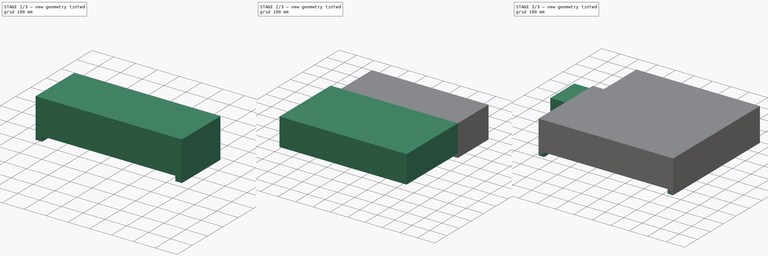
[diagram: build sequence overview — one tinted view per stage of 3, left to right]
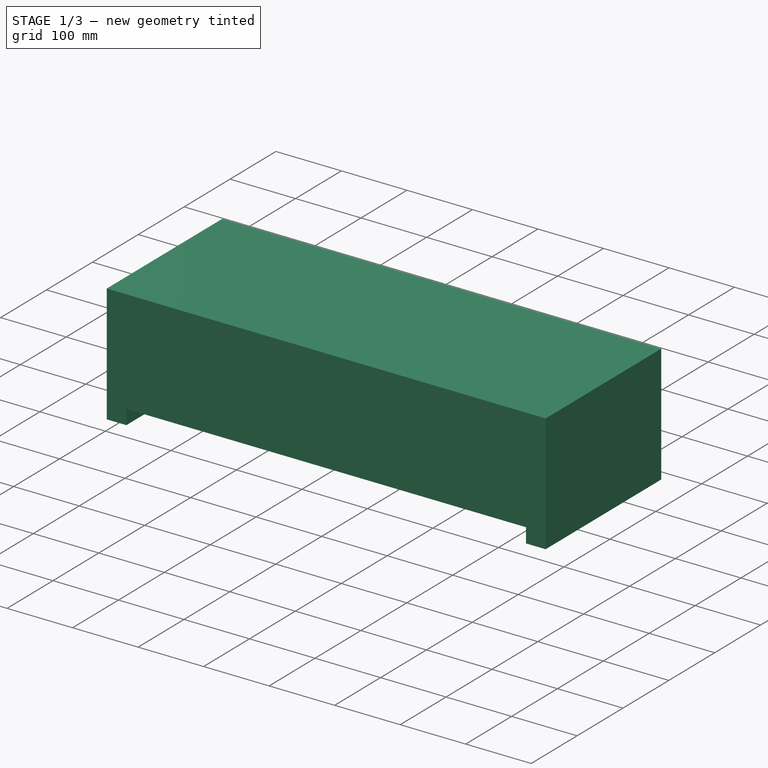
[diagram: stage 1 of 3 — iso view after this stage's code; geometry added in this stage tinted green]
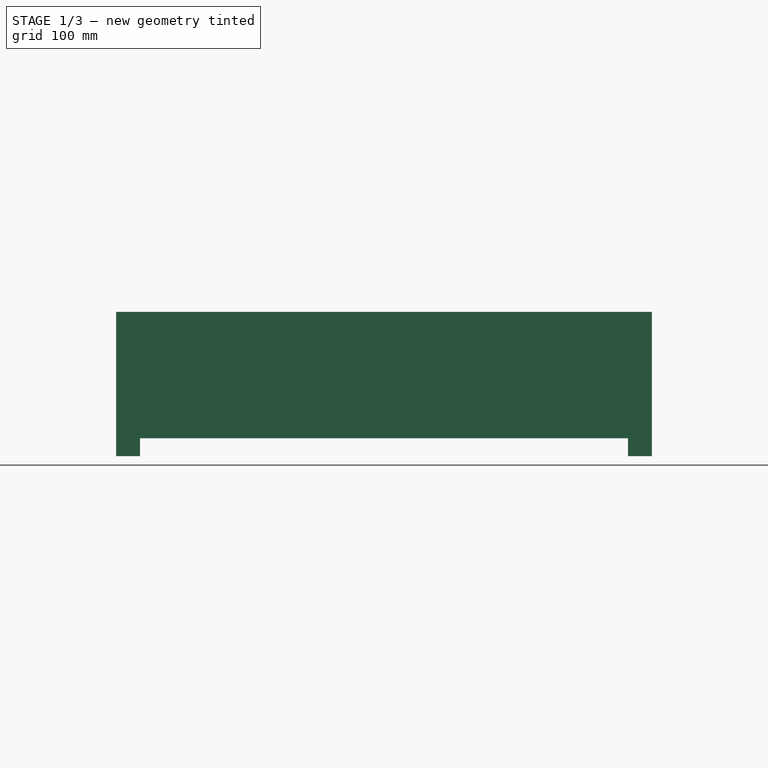
[diagram: stage 1 of 3 — front view after this stage's code; geometry added in this stage tinted green]
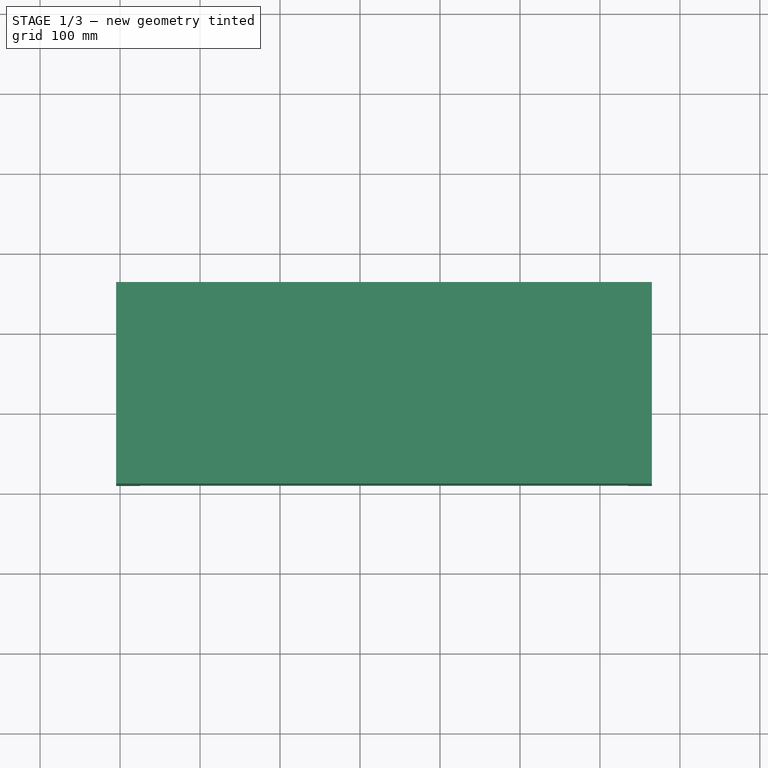
[diagram: stage 1 of 3 — top view after this stage's code; geometry added in this stage tinted green]
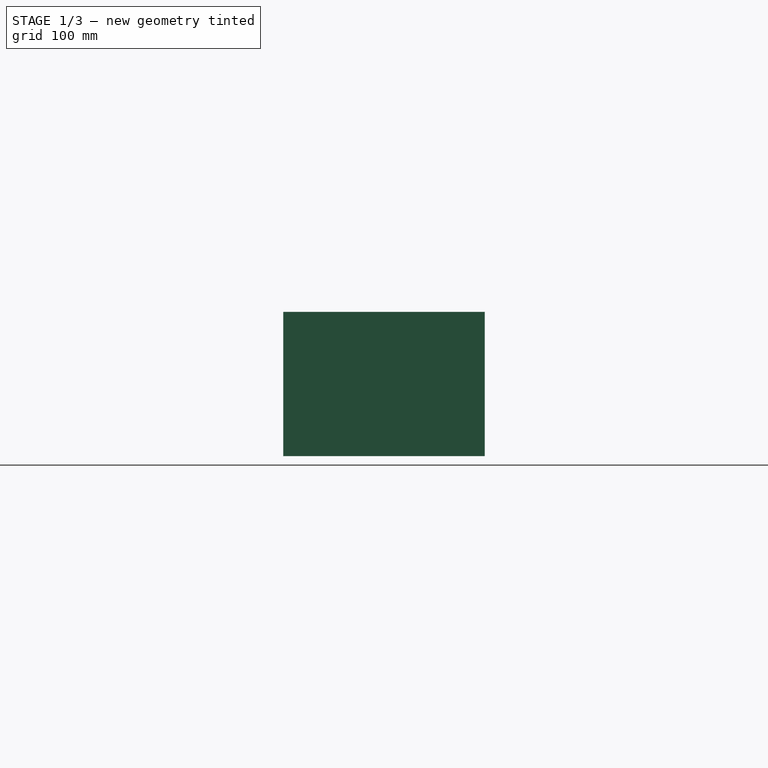
[diagram: stage 1 of 3 — right view after this stage's code; geometry added in this stage tinted green]
FCSTD DOCUMENT  (FreeCAD 1.0R38641 +468 (Git))
Label: harpia_tb
License: All rights reserved
LicenseURL: https://en.wikipedia.org/wiki/All_rights_reserved
objects: PartDesign::CoordinateSystem×10, Sketcher::SketchObject×6, PartDesign::Pad×4, App::DocumentObjectGroup×3, PartDesign::Body×2, Spreadsheet::Sheet×1, App::FeaturePython×1, PartDesign::Pocket×1, App::Part×1
note: 39 computed .brp shape members not serialized (recipe doc carries the construction recipe); baked Part::Feature solids carry a one-line shape summary decoded from their .brp

FEATURE [PartDesign::Body] Body  label="harpia"
  AllowCompound = false
  Group = -> [Sketch,Pad,Sketch001,Pad001,Sketch002,Pad002]
  Origin = -> Origin
  Tip = -> Pad002
FEATURE [PartDesign::Pad] Pad003  label="tb_body"
  Direction = (0,0,1)
  Length = 180.44
  Length2 = 10
  Profile = -> Sketch003
  ReferenceAxis = -> Sketch003 [N_Axis]
  Refine = true
  Suppressed = false
  Type = 0
  expr: Length = <<dimensions>>.height + <<dimensions>>.feet_height
FEATURE [Sketcher::SketchObject] Sketch004
  ArcFitTolerance = 1e-06
  AttachmentSupport = -> [XZ_Plane002]
  FullyConstrained = true
  MakeInternals = false
  MapMode = 5
  Placement = pos=(0,0,0) rot=(1,0,0;1.5708rad)
  expr: Constraints[7] = <<dimensions>>.feet_height
  expr: Constraints[8] = <<dimensions>>.tb_length - 2 * 30 mm
  expr: Constraints[9] = <<dimensions>>.length / 2 - 30 mm
  sketch-geometry (4):
    g0: LineSegment StartX=-275 StartY=22.34 StartZ=0 EndX=-275 EndY=0 EndZ=0
    g1: LineSegment StartX=-275 StartY=0 StartZ=0 EndX=335 EndY=0 EndZ=0
    g2: LineSegment StartX=335 StartY=0 StartZ=0 EndX=335 EndY=22.34 EndZ=0
    g3: LineSegment StartX=335 StartY=22.34 StartZ=0 EndX=-275 EndY=22.34 EndZ=0
  constraints (12):
    c: Coincident(g0,g1)
    c: Coincident(g1,g2)
    c: Coincident(g2,g3)
    c: Coincident(g3,g0)
    c: Vertical(g0)
    c: Vertical(g2)
    c: Horizontal(g1)
    c: DistanceY(g0,g0) = 22.34
    c: DistanceX(g3,g3) = 610
    c: DistanceX(g-1,g2) = 335
    c: PointOnObject(g1,g-1)
    c: Equal(g2,g0)
FEATURE [PartDesign::Pocket] Pocket
  BaseFeature = -> Pad003
  Direction = (0,1,-2e-16)
  Length = 5
  Length2 = 5
  Profile = -> Sketch004
  ReferenceAxis = -> Sketch004 [N_Axis]
  Refine = true
  Suppressed = false
  Type = 1
FEATURE [PartDesign::Body] harpia_tb
  AllowCompound = false
  Group = -> [LCS_Origin001,Sketch003,Pad003,Sketch004,Pocket]
  Origin = -> Origin002
  Tip = -> Pocket
FEATURE [App::DocumentObjectGroup] Parts
  Group = -> [Body,harpia_tb]
FEATURE [Sketcher::SketchObject] beam_input_outputs
  ArcFitTolerance = 1e-06
  AttachmentSupport = -> [XY_Plane002]
  FullyConstrained = true
  MakeInternals = false
  Placement = pos=(0,0,125) rot=(0,0,1;0rad)
  expr: .Placement.Base.z = <<dimensions>>.input_height
  expr: Constraints[12] = <<dimensions>>.beam_off_side_close - <<dimensions>>.beam_off_front_close
  expr: Constraints[13] = <<dimensions>>.prot_width
  expr: Constraints[14] = <<dimensions>>.width / 2
  expr: Constraints[25] = <<dimensions>>.prot_length - <<dimensions>>.beam_off_side_close
  expr: Constraints[26] = <<dimensions>>.beam_off_front_far - <<dimensions>>.beam_off_front_close
  expr: Constraints[27] = <<dimensions>>.beam_off_front_close
  expr: Constraints[39] = 10
  expr: Constraints[41] = <<dimensions>>.length / 2 + <<dimensions>>.beam_off_side_close
  expr: Constraints[50] = <<dimensions>>.width / 2 + <<dimensions>>.tb_width - <<dimensions>>.tb_output_beam_offset
  expr: Constraints[51] = <<dimensions>>.length / 2
  sketch-geometry (21):
    g0: GeomPoint X=-382 Y=24 Z=0
    g1: GeomPoint X=-401 Y=24 Z=0
    g2: GeomPoint X=-465 Y=59 Z=0
    g3: GeomPoint X=-465 Y=174 Z=0
    g4: GeomPoint X=-382 Y=210 Z=0
    g5: GeomPoint X=-401 Y=210 Z=0
    g6: LineSegment [constr] StartX=-382 StartY=210 StartZ=0 EndX=-382 EndY=24 EndZ=0
    g7: LineSegment [constr] StartX=-382 StartY=24 StartZ=0 EndX=-401 EndY=24 EndZ=0
    g8: LineSegment [constr] StartX=-401 StartY=24 StartZ=0 EndX=-401 EndY=210 EndZ=0
    g9: LineSegment [constr] StartX=-401 StartY=210 StartZ=0 EndX=-382 EndY=210 EndZ=0
    g10: LineSegment [constr] StartX=-465 StartY=174 StartZ=0 EndX=-465 EndY=59 EndZ=0
    g11: LineSegment [constr] StartX=-465 StartY=59 StartZ=0 EndX=-382 EndY=59 EndZ=0
    g12: LineSegment [constr] StartX=-382 StartY=59 StartZ=0 EndX=-382 EndY=174 EndZ=0
    g13: LineSegment [constr] StartX=-382 StartY=174 StartZ=0 EndX=-465 EndY=174 EndZ=0
    g14: LineSegment StartX=-401 StartY=24 StartZ=0 EndX=-401 EndY=14 EndZ=0
    g15: LineSegment StartX=-382 StartY=24 StartZ=0 EndX=-382 EndY=14 EndZ=0
    g16: LineSegment StartX=-465 StartY=59 StartZ=0 EndX=-475 EndY=59 EndZ=0
    g17: LineSegment StartX=-465 StartY=174 StartZ=0 EndX=-475 EndY=174 EndZ=0
    g18: LineSegment StartX=-401 StartY=210 StartZ=0 EndX=-401 EndY=220 EndZ=0
    g19: LineSegment StartX=-382 StartY=210 StartZ=0 EndX=-382 EndY=220 EndZ=0
    g20: LineSegment StartX=375 StartY=389 StartZ=0 EndX=365 EndY=389 EndZ=0
  constraints (52):
    c: Coincident(g6,g7)
    c: Coincident(g7,g8)
    c: Coincident(g8,g9)
    c: Coincident(g9,g6)
    c: Vertical(g6)
    c: Vertical(g8)
    c: Horizontal(g7)
    c: Horizontal(g9)
    c: Coincident(g6,g4)
    c: Coincident(g7,g1)
    c: Coincident(g0,g6)
    c: Coincident(g5,g8)
    c: DistanceX(g9,g9) = -19
    c: DistanceY(g6,g6) = 186
    c: DistanceY(g-1,g5) = 210
    c: Coincident(g10,g11)
    c: Coincident(g11,g12)
    c: Coincident(g12,g13)
    c: Coincident(g13,g10)
    c: Vertical(g10)
    c: Vertical(g12)
    c: Horizontal(g11)
    c: Horizontal(g13)
    c: Coincident(g10,g3)
    c: Coincident(g2,g10)
    c: DistanceX(g13,g13) = 83
    c: DistanceY(g10,g10) = 115
    c: DistanceY(g3,g4) = 36
    c: Coincident(g14,g1)
    c: Vertical(g14)
    c: Coincident(g15,g0)
    c: Coincident(g16,g2)
    c: Horizontal(g16)
    c: Coincident(g17,g3)
    c: Equal(g15,g14)
    c: Equal(g14,g16)
    c: Equal(g16,g17)
    c: Parallel(g17,g16)
    c: Parallel(g15,g14)
    c: DistanceY(g15,g15) = 10
    c: PointOnObject(g11,g6)
    c: DistanceX(g11,g-1) = 382
    c: Coincident(g18,g5)
    c: Vertical(g18)
    c: Coincident(g19,g4)
    c: Parallel(g18,g19)
    c: Equal(g18,g19)
    c: Equal(g19,g17)
    c: Horizontal(g20)
    c: Equal(g20,g18)
    c: DistanceY(g-1,g20) = 389
    c: DistanceX(g-1,g20) = 365
FEATURE [PartDesign::CoordinateSystem] LCS_input_1
  AttacherType = Attacher::AttachEngine3D
  AttachmentSupport = -> [beam_input_outputs]
  MapMode = 48
  Placement = pos=(-382,210,125) rot=(0,0.707107,0.707107;3.14159rad)
FEATURE [PartDesign::CoordinateSystem] LCS_input_2
  AttacherType = Attacher::AttachEngine3D
  AttachmentSupport = -> [beam_input_outputs]
  MapMode = 47
  Placement = pos=(-401,210,125) rot=(0,0.707107,0.707107;3.14159rad)
FEATURE [PartDesign::CoordinateSystem] LCS_input_3
  AttacherType = Attacher::AttachEngine3D
  AttachmentSupport = -> [beam_input_outputs]
  MapMode = 48
  Placement = pos=(-465,174,125) rot=(0.57735,-0.57735,-0.57735;2.0944rad)
FEATURE [PartDesign::CoordinateSystem] LCS_input_4
  AttacherType = Attacher::AttachEngine3D
  AttachmentSupport = -> [beam_input_outputs]
  MapMode = 48
  Placement = pos=(-465,59,125) rot=(0.57735,-0.57735,-0.57735;2.0944rad)
FEATURE [PartDesign::CoordinateSystem] LCS_input_5
  AttacherType = Attacher::AttachEngine3D
  AttachmentSupport = -> [beam_input_outputs]
  MapMode = 47
  Placement = pos=(-401,24,125) rot=(1,0,0;1.5708rad)
FEATURE [PartDesign::CoordinateSystem] LCS_input_6
  AttacherType = Attacher::AttachEngine3D
  AttachmentSupport = -> [beam_input_outputs]
  MapMode = 48
  Placement = pos=(-382,24,125) rot=(1,0,0;1.5708rad)
FEATURE [PartDesign::CoordinateSystem] LCS_TB_OUT
  AttacherType = Attacher::AttachEngine3D
  AttachmentSupport = -> [beam_input_outputs]
  MapMode = 48
  Placement = pos=(365,389,125) rot=(0.57735,0.57735,0.57735;2.0944rad)
FEATURE [PartDesign::CoordinateSystem] table_contact
  AttacherType = Attacher::AttachEngine3D
  AttachmentSupport = -> [harpia_tb]
  MapMode = 2
FEATURE [App::Part] Assembly  label="harpia_with_tb"
  AssemblyType = Part::Link
  Group = -> [LCS_Origin,Constraints,Variables,Configurations,LCS_input_1,beam_input_outputs,LCS_input_2,LCS_input_3,LCS_input_4,LCS_input_5,LCS_input_6,LCS_TB_OUT,table_contact,Body,harpia_tb,Parts]
  Origin = -> Origin001
  Type = Assembly
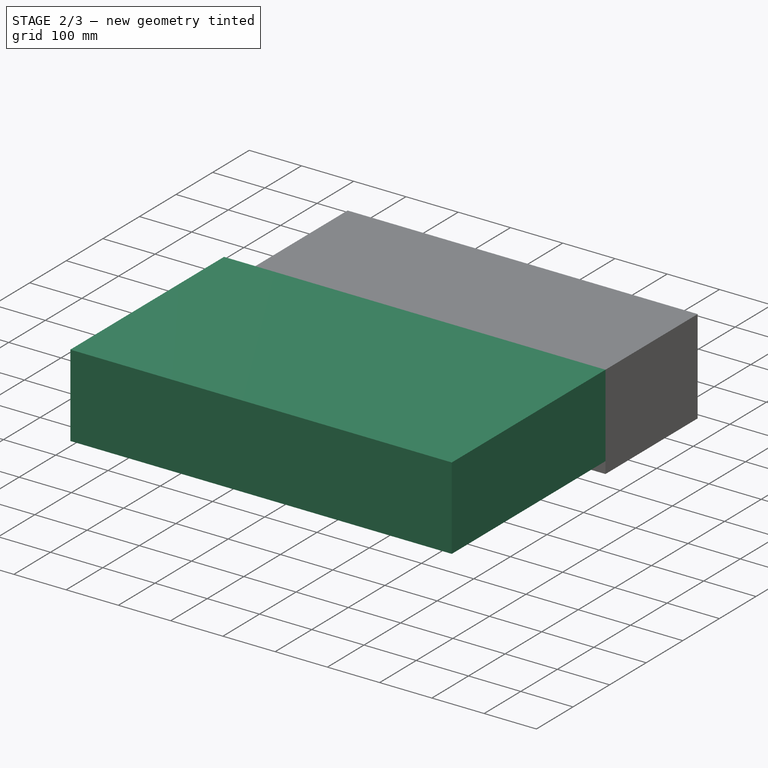
[diagram: stage 2 of 3 — iso view after this stage's code; geometry added in this stage tinted green]
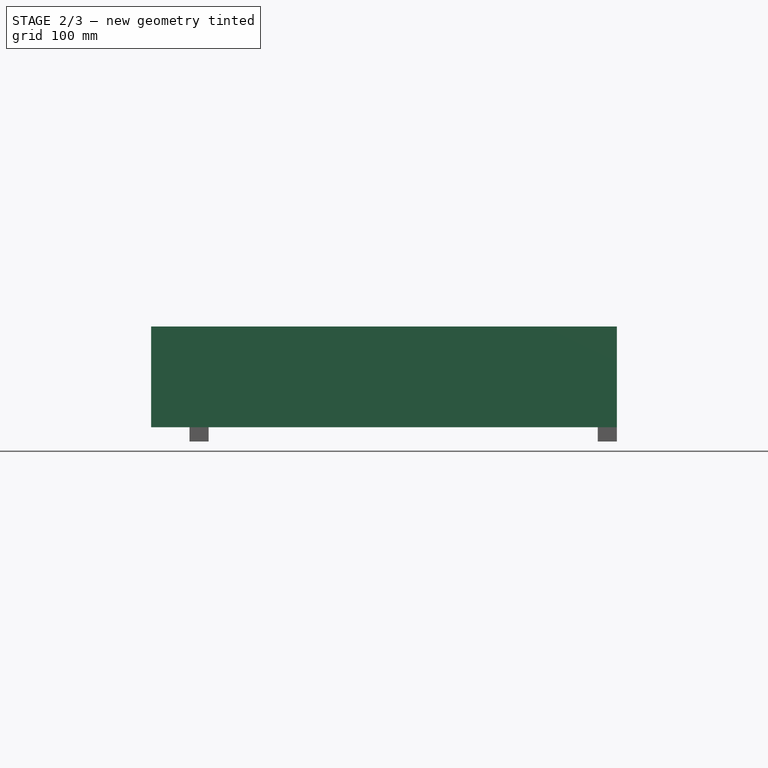
[diagram: stage 2 of 3 — front view after this stage's code; geometry added in this stage tinted green]
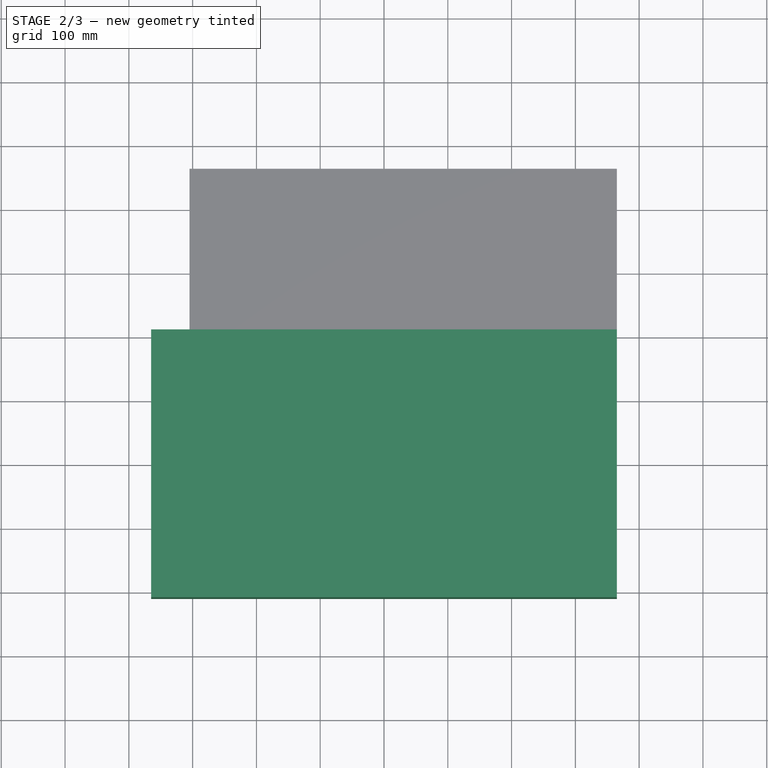
[diagram: stage 2 of 3 — top view after this stage's code; geometry added in this stage tinted green]
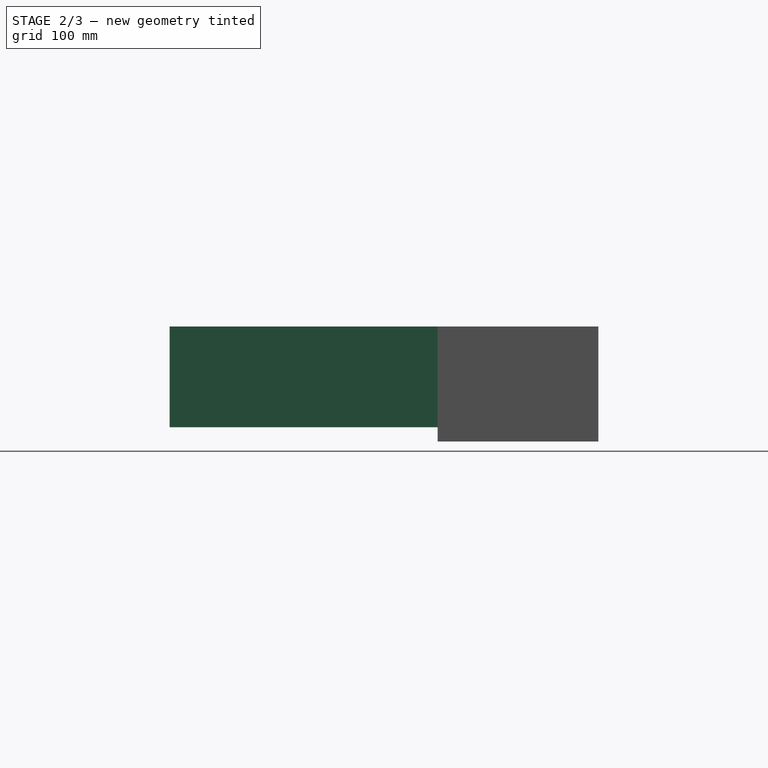
[diagram: stage 2 of 3 — right view after this stage's code; geometry added in this stage tinted green]
FEATURE [Sketcher::SketchObject] Sketch
  ArcFitTolerance = 1e-06
  AttachmentOffset = pos=(0,0,22.34) rot=(0,0,1;0rad)
  AttachmentSupport = -> [XY_Plane]
  FullyConstrained = true
  MakeInternals = false
  MapMode = 5
  Placement = pos=(0,0,22.34) rot=(0,0,1;0rad)
  expr: .AttachmentOffset.Base.z = <<dimensions>>.feet_height
  expr: Constraints[6] = <<dimensions>>.length
  expr: Constraints[7] = <<dimensions>>.width
  sketch-geometry (4):
    g0: LineSegment StartX=-365 StartY=210 StartZ=0 EndX=-365 EndY=-210 EndZ=0
    g1: LineSegment StartX=-365 StartY=-210 StartZ=0 EndX=365 EndY=-210 EndZ=0
    g2: LineSegment StartX=365 StartY=-210 StartZ=0 EndX=365 EndY=210 EndZ=0
    g3: LineSegment StartX=365 StartY=210 StartZ=0 EndX=-365 EndY=210 EndZ=0
  constraints (10):
    c: Coincident(g0,g1)
    c: Coincident(g1,g2)
    c: Coincident(g2,g3)
    c: Coincident(g3,g0)
    c: Vertical(g0)
    c: Horizontal(g1)
    c: DistanceX(g3,g3) = 730
    c: DistanceY(g2,g2) = 420
    c: Symmetric(g0,g2,g-2)
    c: Symmetric(g2,g1,g-1)
FEATURE [Spreadsheet::Sheet] Spreadsheet  label="dimensions"
  cells = A1='Harpia; A2='Length; B2(length)==730 mm; A3='Width; B3(width)==420 mm; A4='Height; B4(height)==158.1 mm; A5='input beam Height; B5(input_height)==125 mm; A6='feet height; B6(feet_height)==22.34 mm; F6=15.45; G6==730 / 71.35 * 15.45; A7='protrusion length; B7(prot_length)==100 mm; F7=71.36; G7=730; A8='protrusion width; B8(prot_width)==186 mm; F8=9.4; G8==730 / 71.35 * 9.4; A9='beam offset close; B9(beam_off_side_close)==17 mm; F9=6.74; G9==730 / 71.35 * 6.74; A10='beam offset far; B10(beam_off_side_far)==47 mm; A11='beam offset front from side; B11(beam_off_front_close)==36 mm; A12='beam offset front from side far; B12(beam_off_front_far)==151 mm; A13='protrusion angle; B13(prot_angle)=30; A14='protrusion offset from bottom; B14(prot_offset)==730 / 71.35 * 9.4; A15='protrusion height; B15(prot_height)==730 / 71.35 * 6.74; A16='Harpia TB; A17='height; B17(tb_height)==height; A18='width; B18(tb_width)==672 mm - 420 mm; A19='length; B19(tb_length)==670 mm; A20='beam_offset; B20(tb_output_beam_offset)==73 mm
FEATURE [PartDesign::Pad] Pad  label="body"
  Direction = (0,0,1)
  Length = 158.1
  Length2 = 10
  Profile = -> Sketch
  ReferenceAxis = -> Sketch [N_Axis]
  Refine = true
  Suppressed = false
  Type = 0
  expr: Length = <<dimensions>>.height
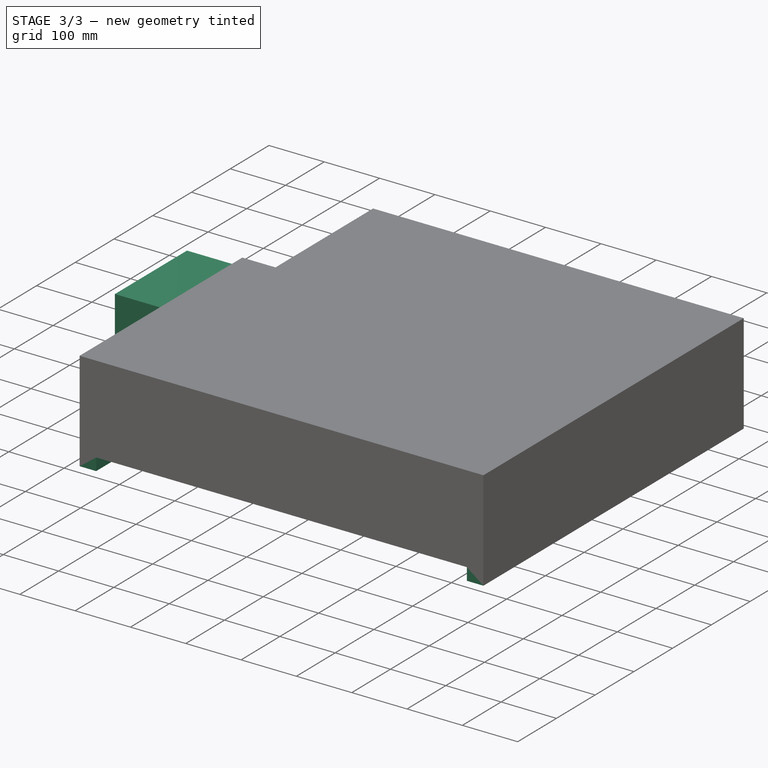
[diagram: stage 3 of 3 — iso view after this stage's code; geometry added in this stage tinted green]
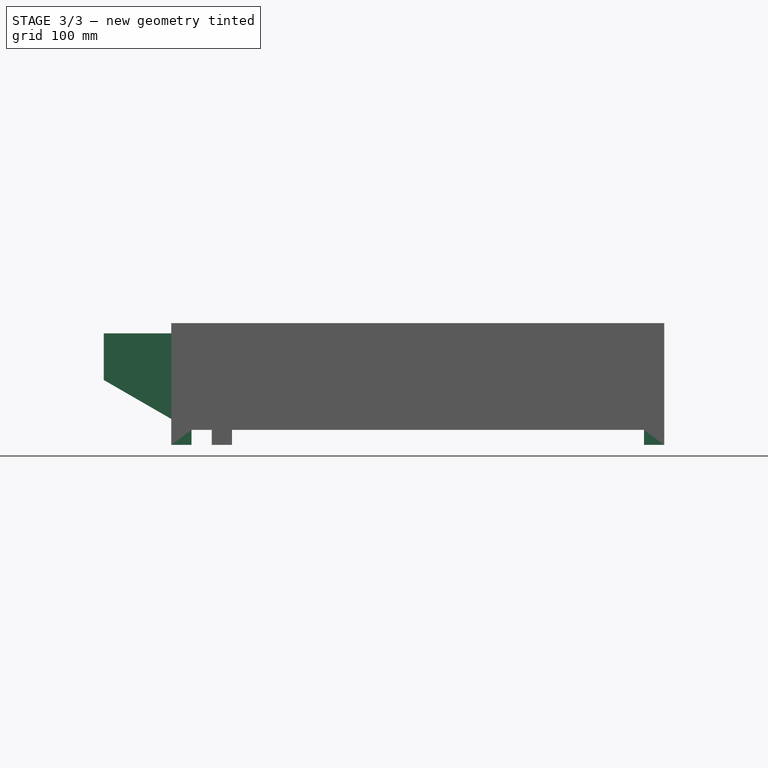
[diagram: stage 3 of 3 — front view after this stage's code; geometry added in this stage tinted green]
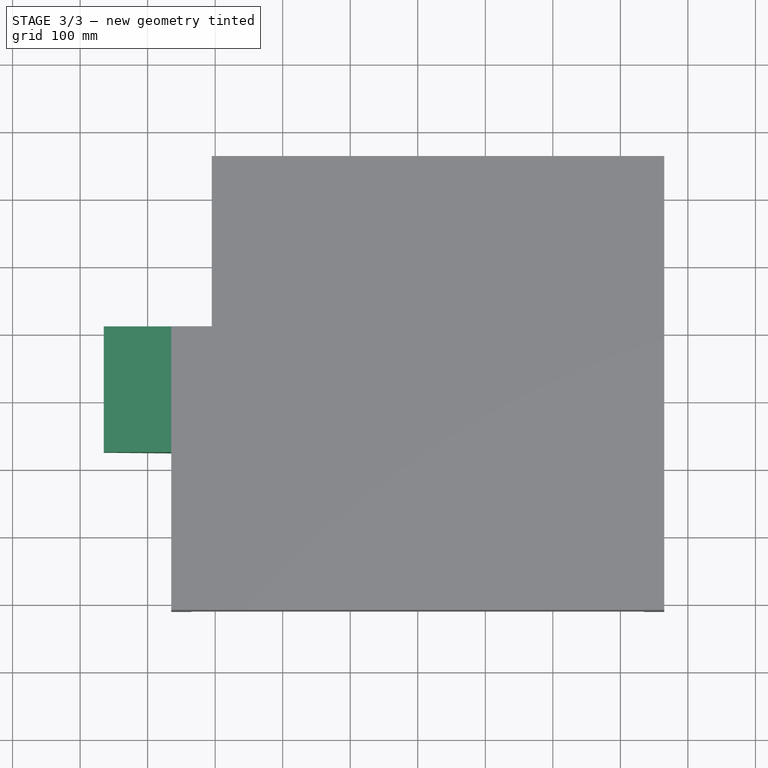
[diagram: stage 3 of 3 — top view after this stage's code; geometry added in this stage tinted green]
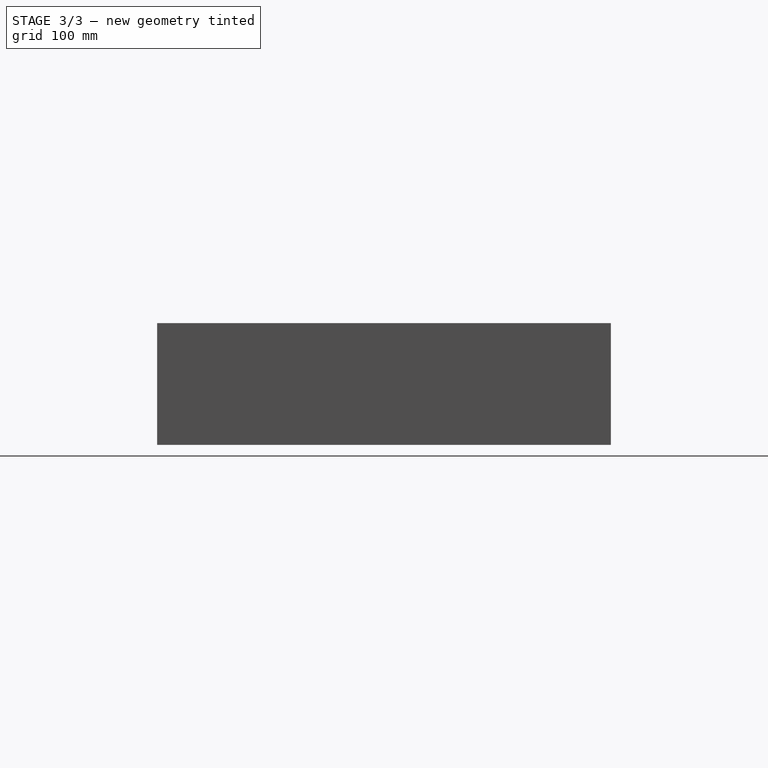
[diagram: stage 3 of 3 — right view after this stage's code; geometry added in this stage tinted green]
FEATURE [Sketcher::SketchObject] Sketch001
  ArcFitTolerance = 1e-06
  AttachmentSupport = -> [XY_Plane]
  FullyConstrained = true
  MakeInternals = false
  MapMode = 5
  expr: Constraints[18] = <<dimensions>>.width
  expr: Constraints[19] = <<dimensions>>.length
  sketch-geometry (8):
    g0: LineSegment StartX=-365 StartY=210 StartZ=0 EndX=-365 EndY=-210 EndZ=0
    g1: LineSegment StartX=-365 StartY=-210 StartZ=0 EndX=-335 EndY=-210 EndZ=0
    g2: LineSegment StartX=-335 StartY=-210 StartZ=0 EndX=-335 EndY=210 EndZ=0
    g3: LineSegment StartX=-335 StartY=210 StartZ=0 EndX=-365 EndY=210 EndZ=0
    g4: LineSegment StartX=335 StartY=210 StartZ=0 EndX=335 EndY=-210 EndZ=0
    g5: LineSegment StartX=335 StartY=-210 StartZ=0 EndX=365 EndY=-210 EndZ=0
    g6: LineSegment StartX=365 StartY=-210 StartZ=0 EndX=365 EndY=210 EndZ=0
    g7: LineSegment StartX=365 StartY=210 StartZ=0 EndX=335 EndY=210 EndZ=0
  constraints (21):
    c: Coincident(g0,g1)
    c: Coincident(g1,g2)
    c: Coincident(g2,g3)
    c: Coincident(g3,g0)
    c: Vertical(g0)
    c: Horizontal(g1)
    c: Horizontal(g3)
    c: Coincident(g4,g5)
    c: Coincident(g5,g6)
    c: Coincident(g6,g7)
    c: Coincident(g7,g4)
    c: Vertical(g6)
    c: Horizontal(g5)
    c: Horizontal(g7)
    c: Symmetric(g2,g1,g-1)
    c: Symmetric(g4,g4,g-1)
    c: Equal(g7,g3)
    c: DistanceX(g3,g3) = 30
    c: DistanceY(g0,g0) = 420
    c: DistanceX(g0,g6) = 730
    c: Symmetric(g2,g4,g-2)
FEATURE [PartDesign::Pad] Pad001  label="feet"
  BaseFeature = -> Pad
  Direction = (0,0,1)
  Length = 22.34
  Length2 = 10
  Profile = -> Sketch001
  ReferenceAxis = -> Sketch001 [N_Axis]
  Refine = true
  Suppressed = false
  Type = 0
  expr: Length = <<dimensions>>.feet_height
FEATURE [Sketcher::SketchObject] Sketch002
  ArcFitTolerance = 1e-06
  AttachmentOffset = pos=(0,0,-210) rot=(0,0,1;0rad)
  AttachmentSupport = -> [XZ_Plane]
  FullyConstrained = true
  MakeInternals = false
  MapMode = 5
  Placement = pos=(0,210,-4.66e-14) rot=(1,0,0;1.5708rad)
  expr: .AttachmentOffset.Base.z = -<<dimensions>>.width / 2
  expr: Constraints[10] = <<dimensions>>.prot_height
  expr: Constraints[11] = <<dimensions>>.prot_length
  expr: Constraints[12] = <<dimensions>>.prot_offset
  expr: Constraints[13] = <<dimensions>>.length / 2
  expr: Constraints[9] = <<dimensions>>.prot_angle
  sketch-geometry (5):
    g0: LineSegment StartX=-465 StartY=165.132 StartZ=0 EndX=-365 EndY=165.132 EndZ=0
    g1: LineSegment StartX=-365 StartY=165.132 StartZ=0 EndX=-365 EndY=38.4388 EndZ=0
    g2: LineSegment StartX=-365 StartY=38.4388 StartZ=0 EndX=-465 EndY=96.1738 EndZ=0
    g3: LineSegment StartX=-465 StartY=96.1738 StartZ=0 EndX=-465 EndY=165.132 EndZ=0
    g4: LineSegment [constr] StartX=-465 StartY=96.1738 StartZ=0 EndX=-365 EndY=96.1738 EndZ=0
  constraints (15):
    c: Horizontal(g0)
    c: Coincident(g0,g1)
    c: Vertical(g1)
    c: Coincident(g1,g2)
    c: Coincident(g2,g3)
    c: Coincident(g3,g0)
    c: Vertical(g3)
    c: Coincident(g4,g2)
    c: Horizontal(g4)
    c: Angle(g2,g4) = 0.523599
    c: DistanceY(g3,g3) = 68.9587
    c: DistanceX(g0,g0) = 100
    c: DistanceY(g-1,g2) = 96.1738
    c: DistanceX(g0,g-1) = 365
    c: PointOnObject(g4,g1)
FEATURE [PartDesign::CoordinateSystem] LCS_Origin
  AttacherType = Attacher::AttachEngine3D
  AttachmentSupport = -> [X_Axis001]
  MapMode = 2
FEATURE [App::DocumentObjectGroup] Constraints
FEATURE [App::FeaturePython] Variables  # WARN: FeaturePython — macro-defined, semantics opaque (R4)
  Type = App::PropertyContainer
FEATURE [App::DocumentObjectGroup] Configurations
FEATURE [PartDesign::CoordinateSystem] LCS_Origin001
  AttacherType = Attacher::AttachEngine3D
  AttachmentSupport = -> [X_Axis002]
  MapMode = 2
FEATURE [Sketcher::SketchObject] Sketch003
  ArcFitTolerance = 1e-06
  AttachmentSupport = -> [XY_Plane002]
  FullyConstrained = true
  MakeInternals = false
  MapMode = 5
  expr: Constraints[10] = <<dimensions>>.length / 2
  expr: Constraints[11] = <<dimensions>>.width / 2
  expr: Constraints[8] = <<dimensions>>.tb_length
  expr: Constraints[9] = <<dimensions>>.tb_width
  sketch-geometry (4):
    g0: LineSegment StartX=-305 StartY=462 StartZ=0 EndX=-305 EndY=210 EndZ=0
    g1: LineSegment StartX=-305 StartY=210 StartZ=0 EndX=365 EndY=210 EndZ=0
    g2: LineSegment StartX=365 StartY=210 StartZ=0 EndX=365 EndY=462 EndZ=0
    g3: LineSegment StartX=365 StartY=462 StartZ=0 EndX=-305 EndY=462 EndZ=0
  constraints (12):
    c: Coincident(g0,g1)
    c: Coincident(g1,g2)
    c: Coincident(g2,g3)
    c: Coincident(g3,g0)
    c: Vertical(g0)
    c: Vertical(g2)
    c: Horizontal(g1)
    c: Horizontal(g3)
    c: DistanceX(g3,g3) = 670
    c: DistanceY(g0,g0) = 252
    c: DistanceX(g-1,g1) = 365
    c: DistanceY(g-1,g0) = 210
FEATURE [PartDesign::Pad] Pad002
  BaseFeature = -> Pad001
  Direction = (0,-1,2e-16)
  Length = 186
  Length2 = 10
  Profile = -> Sketch002
  ReferenceAxis = -> Sketch002 [N_Axis]
  Refine = true
  Suppressed = false
  Type = 0
  expr: Length = <<dimensions>>.prot_width
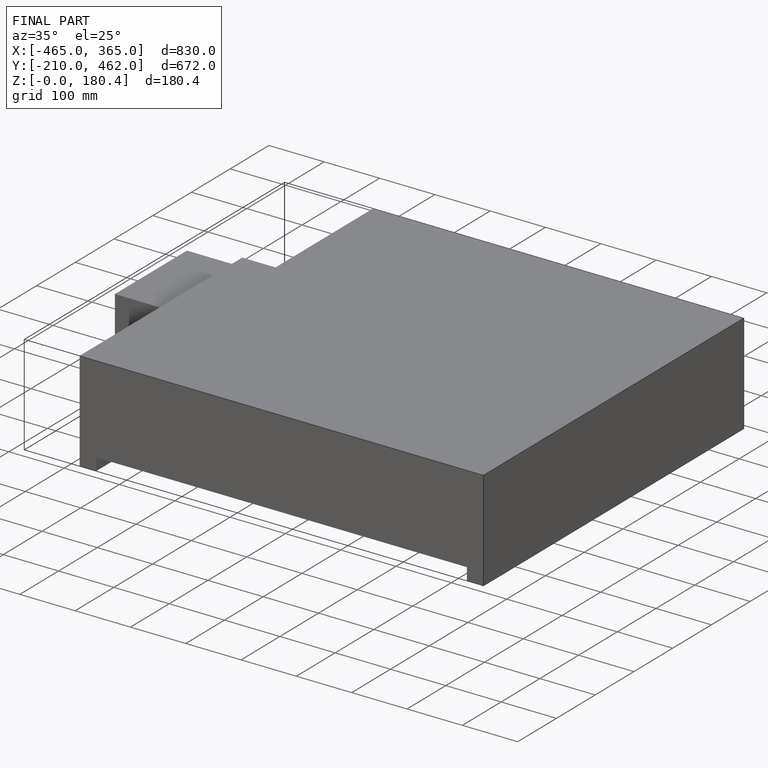
[diagram: finished part — iso view with bounding-box wireframe]
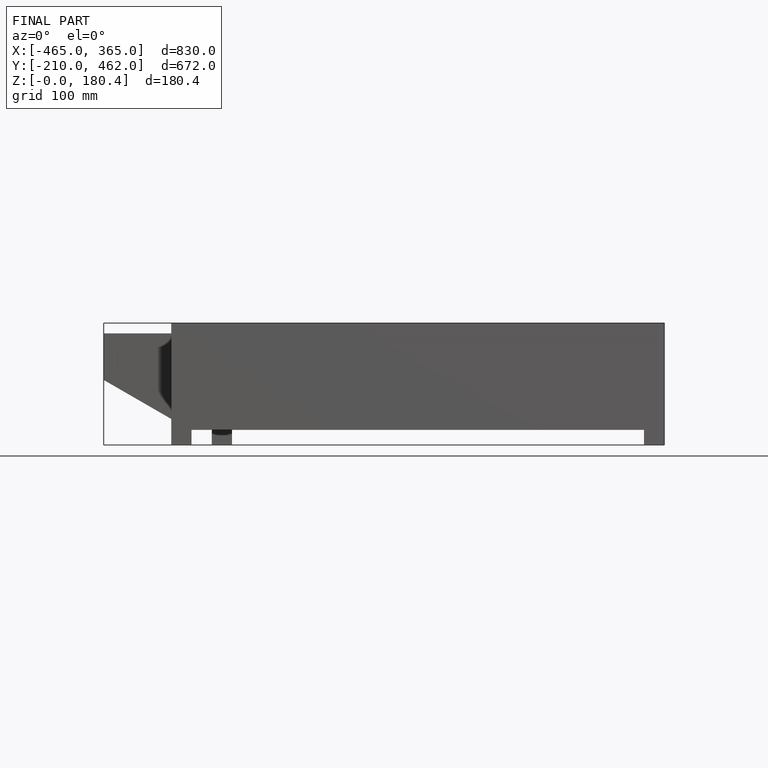
[diagram: finished part — front view with bounding-box wireframe]
